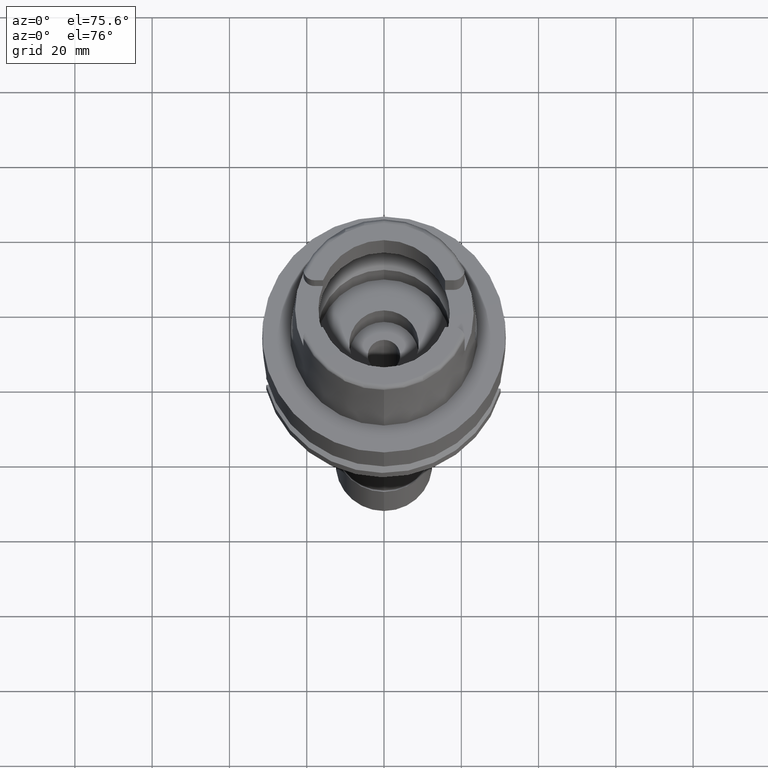
[diagram: clean part render]
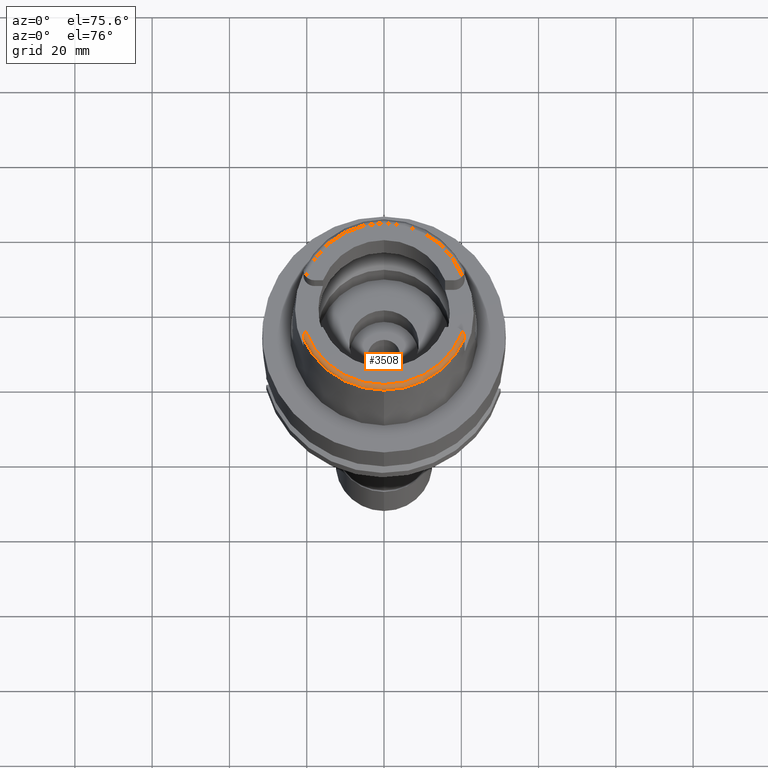
[diagram: same view with one face highlighted and labeled with its STEP entity id]
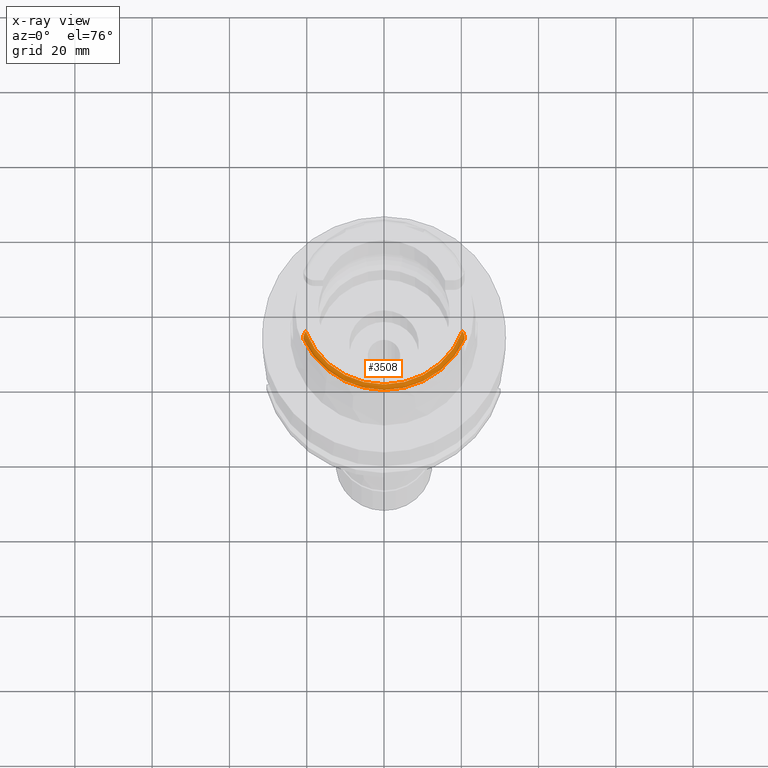
[diagram: x-ray of the same camera — body ghosted, the highlighted face saturated]
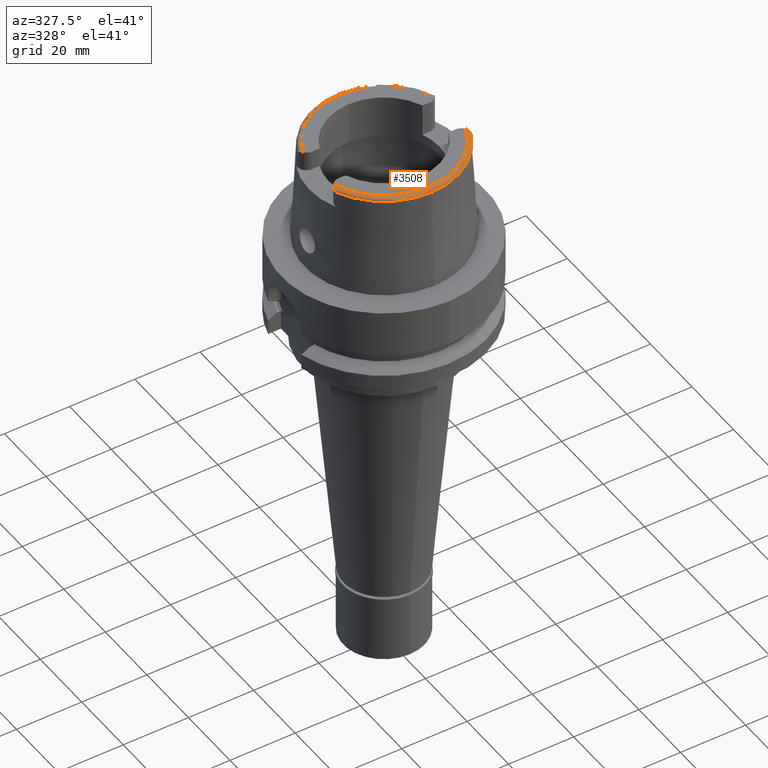
[diagram: same view with one face highlighted and labeled with its STEP entity id]
A machine part, auxiliary view. The second image highlights one B-rep face of the part: STEP entity #3508.
The next image is the same camera in x-ray: the body ghosted, the highlighted face saturated — about 0% of this face is hidden behind the body in this view.
A second angle (auxiliary view) of the same face is appended — the face is thin or edge-on in the first view.
In plain terms, the highlighted toroidal blend (fillet) surface has major radius 21.5735 mm and minor (blend) radius 1.2 mm.
Its self-contained STEP definition (entity closure, byte-faithful):
#73 = CARTESIAN_POINT ( 'NONE',  ( 20.28174256341000259, -7.352969181062000814, 32.00000000000000000 ) ) ;
#148 = CARTESIAN_POINT ( 'NONE',  ( -20.86106873378441406, -8.919075958166269302, 31.24972338002490702 ) ) ;
#150 = CARTESIAN_POINT ( 'NONE',  ( 20.87000527243999670, -9.108806756949000771, 30.87564646654000100 ) ) ;
#224 = EDGE_CURVE ( 'NONE', #1503, #257, #843, .T. ) ;
#257 = VERTEX_POINT ( 'NONE', #3829 ) ;
#258 = CARTESIAN_POINT ( 'NONE',  ( -20.82123981741284169, -8.621871242620823494, 31.51720613351284683 ) ) ;
#310 = CARTESIAN_POINT ( 'NONE',  ( 20.78561441411750366, -8.387068471991993235, 31.65701009491332130 ) ) ;
#337 = CARTESIAN_POINT ( 'NONE',  ( 20.85722868812575115, -8.797855891196439515, 31.35913839182558860 ) ) ;
#414 = FACE_OUTER_BOUND ( 'NONE', #2578, .T. ) ;
#492 = VERTEX_POINT ( 'NONE', #4183 ) ;
#572 = CARTESIAN_POINT ( 'NONE',  ( 0.0000000000000000000, 0.0000000000000000000, 32.00000000000000000 ) ) ;
#621 = CARTESIAN_POINT ( 'NONE',  ( -20.86537608892643192, -8.985370889472953593, 31.16253860592320279 ) ) ;
#654 = CARTESIAN_POINT ( 'NONE',  ( -20.76078147623686121, -8.364312273394416408, 31.68643957961278446 ) ) ;
#695 = DIRECTION ( 'NONE',  ( 0.0000000000000000000, 0.0000000000000000000, -1.000000000000000000 ) ) ;
#698 = CARTESIAN_POINT ( 'NONE',  ( 20.34648528769570675, -7.436365610168397033, 31.99999999999999289 ) ) ;
#754 = CARTESIAN_POINT ( 'NONE',  ( 20.69890936654068625, -8.101426391107848346, 31.80919061550238069 ) ) ;
#828 = DIRECTION ( 'NONE',  ( 0.0000000000000000000, 0.0000000000000000000, 1.000000000000000000 ) ) ;
#843 = CIRCLE ( 'NONE', #2156, 21.57348458609000375 ) ;
#936 = B_SPLINE_CURVE_WITH_KNOTS ( 'NONE', 3,
 ( #4471, #698, #4527, #2372, #4058, #5332, #1201, #1141, #2878, #2817, #754, #4495, #2399, #310, #1994, #3677, #2436, #3298, #5356, #1572, #3271, #337, #3700, #5385, #2047 ),
 .UNSPECIFIED., .F., .F.,
 ( 4, 2, 1, 1, 2, 2, 2, 1, 1, 1, 2, 2, 2, 2, 4 ),
 ( 0.0000000000000000000, 0.1249999999999970579, 0.1874999999999952816, 0.2187499999999948097, 0.2343749999999934774, 0.2499999999999921729, 0.3749999999999762967, 0.4374999999999675260, 0.4687499999999621969, 0.4843749999999616418, 0.4921874999999604761, 0.4999999999999593658, 0.6249999999999695799, 0.7499999999999796829, 1.000000000000000000 ),
 .UNSPECIFIED. ) ;
#955 = ORIENTED_EDGE ( 'NONE', *, *, #224, .T. ) ;
#960 = VERTEX_POINT ( 'NONE', #2964 ) ;
#1017 = CARTESIAN_POINT ( 'NONE',  ( -20.83061104024620036, -8.674958163215370277, 31.47657391815587147 ) ) ;
#1141 = CARTESIAN_POINT ( 'NONE',  ( 20.61026413736297869, -7.892178998354101971, 31.89269480143985902 ) ) ;
#1188 = ORIENTED_EDGE ( 'NONE', *, *, #4161, .F. ) ;
#1201 = CARTESIAN_POINT ( 'NONE',  ( 20.59811007569286545, -7.866312480470592838, 31.90182715876409958 ) ) ;
#1254 = TOROIDAL_SURFACE ( 'NONE', #1957, 21.57348458609000019, 1.199999999999999956 ) ;
#1257 = DIRECTION ( 'NONE',  ( 0.9164775804687985694, -0.4000860463675992573, 0.0000000000000000000 ) ) ;
#1269 = EDGE_CURVE ( 'NONE', #1503, #960, #936, .T. ) ;
#1418 = CARTESIAN_POINT ( 'NONE',  ( -20.26871835884000106, -7.388795116668999796, 32.00000000000000000 ) ) ;
#1435 = CIRCLE ( 'NONE', #5132, 22.77198729362001117 ) ;
#1503 = VERTEX_POINT ( 'NONE', #73 ) ;
#1572 = CARTESIAN_POINT ( 'NONE',  ( 20.83276574805547199, -8.610322159010278753, 31.51136504992298981 ) ) ;
#1681 = VERTEX_POINT ( 'NONE', #1904 ) ;
#1829 = CARTESIAN_POINT ( 'NONE',  ( -20.86836206180588960, -9.052099801627344178, 31.05202531139729416 ) ) ;
#1904 = CARTESIAN_POINT ( 'NONE',  ( -20.86974104061000190, -9.111384044299001062, 30.85992600358999738 ) ) ;
#1942 = CARTESIAN_POINT ( 'NONE',  ( -20.41288727578294271, -7.575326712687819430, 32.00000000000000711 ) ) ;
#1957 = AXIS2_PLACEMENT_3D ( 'NONE', #3397, #828, #4133 ) ;
#1994 = CARTESIAN_POINT ( 'NONE',  ( 20.79516365383102894, -8.426789225065970612, 31.63269342598317735 ) ) ;
#2007 = EDGE_CURVE ( 'NONE', #1681, #257, #2897, .T. ) ;
#2008 = ORIENTED_EDGE ( 'NONE', *, *, #1269, .F. ) ;
#2047 = CARTESIAN_POINT ( 'NONE',  ( 20.87000000000000099, -9.070000000000000284, 31.00584217417999966 ) ) ;
#2156 = AXIS2_PLACEMENT_3D ( 'NONE', #572, #3900, #3469 ) ;
#2276 = CARTESIAN_POINT ( 'NONE',  ( -20.76703506653049658, -8.386710125800197702, 31.67329902348813775 ) ) ;
#2299 = CARTESIAN_POINT ( 'NONE',  ( -20.84577607702565416, -8.776009035670808700, 31.39231629671338553 ) ) ;
#2330 = CARTESIAN_POINT ( 'NONE',  ( -20.65355961511635030, -8.054532901670055978, 31.84211340595874518 ) ) ;
#2332 = CARTESIAN_POINT ( 'NONE',  ( 20.86999753952999725, -9.103314121724000785, 30.90743693427999972 ) ) ;
#2357 = CARTESIAN_POINT ( 'NONE',  ( -20.86946296253639233, -9.089143791438385023, 30.96910676297217435 ) ) ;
#2372 = CARTESIAN_POINT ( 'NONE',  ( 20.49360374202687396, -7.666724159548611084, 31.96103527541644596 ) ) ;
#2399 = CARTESIAN_POINT ( 'NONE',  ( 20.76487249974454485, -8.307397114415744355, 31.70368798079464057 ) ) ;
#2417 = CARTESIAN_POINT ( 'NONE',  ( 0.0000000000000000000, 0.0000000000000000000, 30.85992712280000205 ) ) ;
#2436 = CARTESIAN_POINT ( 'NONE',  ( 20.80165580030241301, -8.455109518040510252, 31.61492863051349644 ) ) ;
#2551 = ORIENTED_EDGE ( 'NONE', *, *, #3723, .F. ) ;
#2578 = EDGE_LOOP ( 'NONE', ( #1188, #2551, #3029, #2008, #955, #3212 ) ) ;
#2583 = CIRCLE ( 'NONE', #3301, 22.77198729362000051 ) ;
#2633 = CARTESIAN_POINT ( 'NONE',  ( -20.86974104061000190, -9.111384044299001062, 30.85992600358999738 ) ) ;
#2699 = CARTESIAN_POINT ( 'NONE',  ( -20.80013520874296162, -8.517921418868994010, 31.59109062729562822 ) ) ;
#2710 = CARTESIAN_POINT ( 'NONE',  ( 20.87000527243999670, -9.110771420352000050, 30.85992623711999983 ) ) ;
#2725 = CARTESIAN_POINT ( 'NONE',  ( -20.77614558118982657, -8.420125878909374251, 31.65339024462795336 ) ) ;
#2817 = CARTESIAN_POINT ( 'NONE',  ( 20.66337875289362458, -8.009610510742069422, 31.84912795722486578 ) ) ;
#2878 = CARTESIAN_POINT ( 'NONE',  ( 20.61701374894018457, -7.906867236469294902, 31.88735305987744439 ) ) ;
#2897 = B_SPLINE_CURVE_WITH_KNOTS ( 'NONE', 3,
 ( #2633, #3898, #2357, #1829, #3112, #4423, #621, #148, #4779, #2299, #4373, #4895, #1017, #5310, #258, #3146, #2699, #4040, #2725, #2276, #654, #3523, #5194, #3931, #3582, #3550, #2330, #4395, #5285, #1942, #1418 ),
 .UNSPECIFIED., .F., .F.,
 ( 4, 2, 2, 2, 2, 2, 2, 2, 2, 1, 2, 2, 1, 1, 2, 2, 4 ),
 ( 0.0000000000000000000, 0.1250000000000045242, 0.1875000000000093536, 0.2500000000000141553, 0.3750000000000240363, 0.4375000000000279776, 0.4687500000000278666, 0.5000000000000277556, 0.5625000000000280886, 0.5937500000000284217, 0.6093750000000298650, 0.6250000000000313083, 0.6875000000000293099, 0.7187500000000283107, 0.7343750000000284217, 0.7500000000000286438, 1.000000000000000000 ),
 .UNSPECIFIED. ) ;
#2964 = CARTESIAN_POINT ( 'NONE',  ( 20.87000000000000099, -9.070000000000000284, 31.00584217417999966 ) ) ;
#3029 = ORIENTED_EDGE ( 'NONE', *, *, #5229, .F. ) ;
#3112 = CARTESIAN_POINT ( 'NONE',  ( -20.86785103901518923, -9.037490405948032546, 31.07977960297104403 ) ) ;
#3146 = CARTESIAN_POINT ( 'NONE',  ( -20.80926589571627616, -8.560173447910161215, 31.56217025273680576 ) ) ;
#3148 = CARTESIAN_POINT ( 'NONE',  ( 20.87000000000000099, -9.070000000000000284, 31.00584217417999966 ) ) ;
#3212 = ORIENTED_EDGE ( 'NONE', *, *, #2007, .F. ) ;
#3271 = CARTESIAN_POINT ( 'NONE',  ( 20.85103509951619216, -8.738304248769374283, 31.41135620007050377 ) ) ;
#3298 = CARTESIAN_POINT ( 'NONE',  ( 20.80314465722408812, -8.461770607408016787, 31.61069817628252210 ) ) ;
#3301 = AXIS2_PLACEMENT_3D ( 'NONE', #3620, #695, #5353 ) ;
#3397 = CARTESIAN_POINT ( 'NONE',  ( 0.0000000000000000000, 0.0000000000000000000, 30.80000000000000071 ) ) ;
#3469 = DIRECTION ( 'NONE',  ( 0.9401236264118068009, -0.3408336354621024911, 0.0000000000000000000 ) ) ;
#3508 = ADVANCED_FACE ( 'NONE', ( #414 ), #1254, .T. ) ;
#3523 = CARTESIAN_POINT ( 'NONE',  ( -20.75806867605212247, -8.354776493098359680, 31.69196344962919198 ) ) ;
#3526 = CARTESIAN_POINT ( 'NONE',  ( 20.87000070298999788, -9.089775825819000232, 30.95646560140000147 ) ) ;
#3550 = CARTESIAN_POINT ( 'NONE',  ( -20.66413642318183363, -8.080611213349188304, 31.83083785294535417 ) ) ;
#3582 = CARTESIAN_POINT ( 'NONE',  ( -20.67967604937136983, -8.119748999803912071, 31.81354288808347519 ) ) ;
#3620 = CARTESIAN_POINT ( 'NONE',  ( 0.0000000000000000000, 0.0000000000000000000, 30.85992712280000205 ) ) ;
#3677 = CARTESIAN_POINT ( 'NONE',  ( 20.79908203196178818, -8.443785197433417267, 31.62206248372963202 ) ) ;
#3700 = CARTESIAN_POINT ( 'NONE',  ( 20.86950661482267222, -8.953434923605325224, 31.20481838685631359 ) ) ;
#3723 = EDGE_CURVE ( 'NONE', #4751, #492, #1435, .T. ) ;
#3829 = CARTESIAN_POINT ( 'NONE',  ( -20.26871835884000106, -7.388795116668999796, 32.00000000000000000 ) ) ;
#3898 = CARTESIAN_POINT ( 'NONE',  ( -20.86965271919777720, -9.104793082433713991, 30.91428683241698394 ) ) ;
#3900 = DIRECTION ( 'NONE',  ( 0.0000000000000000000, 0.0000000000000000000, -1.000000000000000000 ) ) ;
#3931 = CARTESIAN_POINT ( 'NONE',  ( -20.71367396631514879, -8.211171714709346148, 31.77051652267996573 ) ) ;
#4040 = CARTESIAN_POINT ( 'NONE',  ( -20.78447034740333521, -8.452984014875672969, 31.63288763174812601 ) ) ;
#4058 = CARTESIAN_POINT ( 'NONE',  ( 20.53479733263501927, -7.739460183195837395, 31.94277056076792576 ) ) ;
#4133 = DIRECTION ( 'NONE',  ( -0.0006539142454762719193, -0.9999997861980568503, 0.0000000000000000000 ) ) ;
#4158 = B_SPLINE_CURVE_WITH_KNOTS ( 'NONE', 3,
 ( #3148, #5286, #3526, #2332, #150, #4458 ),
 .UNSPECIFIED., .F., .F.,
 ( 4, 1, 1, 4 ),
 ( 0.0000000000000000000, 0.3333333333333000081, 0.6666666666667000474, 1.000000000000000000 ),
 .UNSPECIFIED. ) ;
#4161 = EDGE_CURVE ( 'NONE', #492, #1681, #2583, .T. ) ;
#4183 = CARTESIAN_POINT ( 'NONE',  ( 0.0000000000000000000, -22.77198729362000051, 30.85992712280000205 ) ) ;
#4208 = DIRECTION ( 'NONE',  ( 0.0000000000000000000, 0.0000000000000000000, -1.000000000000000000 ) ) ;
#4373 = CARTESIAN_POINT ( 'NONE',  ( -20.84141893757149688, -8.743791009150299942, 31.42052943803448528 ) ) ;
#4395 = CARTESIAN_POINT ( 'NONE',  ( -20.64883596002113109, -8.043092978073751453, 31.84696572098135547 ) ) ;
#4423 = CARTESIAN_POINT ( 'NONE',  ( -20.86633427323639012, -9.003759923002528254, 31.13551773698266700 ) ) ;
#4458 = CARTESIAN_POINT ( 'NONE',  ( 20.87000527243999670, -9.110771420352000050, 30.85992623711999983 ) ) ;
#4471 = CARTESIAN_POINT ( 'NONE',  ( 20.28174256341000259, -7.352969181062000814, 32.00000000000000000 ) ) ;
#4495 = CARTESIAN_POINT ( 'NONE',  ( 20.74421521851668970, -8.238797384276452362, 31.74034539387171705 ) ) ;
#4527 = CARTESIAN_POINT ( 'NONE',  ( 20.40794629716998898, -7.525280011589768669, 31.99025881885412304 ) ) ;
#4751 = VERTEX_POINT ( 'NONE', #2710 ) ;
#4779 = CARTESIAN_POINT ( 'NONE',  ( -20.85667452803823352, -8.866658996358779632, 31.30716780272246069 ) ) ;
#4895 = CARTESIAN_POINT ( 'NONE',  ( -20.83348773490710926, -8.692532594734911910, 31.46259461500223864 ) ) ;
#5132 = AXIS2_PLACEMENT_3D ( 'NONE', #2417, #4208, #1257 ) ;
#5194 = CARTESIAN_POINT ( 'NONE',  ( -20.73900212484853256, -8.289569144035345616, 31.72905715680419192 ) ) ;
#5229 = EDGE_CURVE ( 'NONE', #960, #4751, #4158, .T. ) ;
#5285 = CARTESIAN_POINT ( 'NONE',  ( -20.54378316517625080, -7.794619306990656860, 31.94967296601458528 ) ) ;
#5286 = CARTESIAN_POINT ( 'NONE',  ( 20.87000000000000099, -9.077213935586998517, 30.98932822387000030 ) ) ;
#5310 = CARTESIAN_POINT ( 'NONE',  ( -20.82433582493974811, -8.638848104642608661, 31.50444767945847957 ) ) ;
#5332 = CARTESIAN_POINT ( 'NONE',  ( 20.57962842548953120, -7.827751148499987544, 31.91506907688430061 ) ) ;
#5353 = DIRECTION ( 'NONE',  ( 0.0000000000000000000, -1.000000000000000000, 0.0000000000000000000 ) ) ;
#5356 = CARTESIAN_POINT ( 'NONE',  ( 20.82060866609876015, -8.540881804050837189, 31.56015315483296746 ) ) ;
#5385 = CARTESIAN_POINT ( 'NONE',  ( 20.86999999999999744, -9.027033631036184502, 31.10419964819326566 ) ) ;